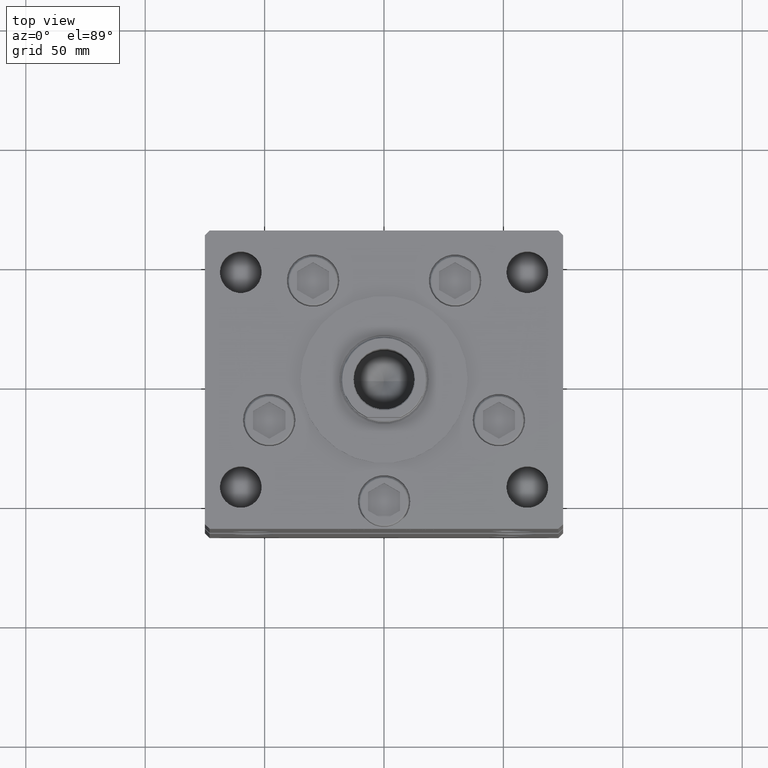
[diagram: clean part render]
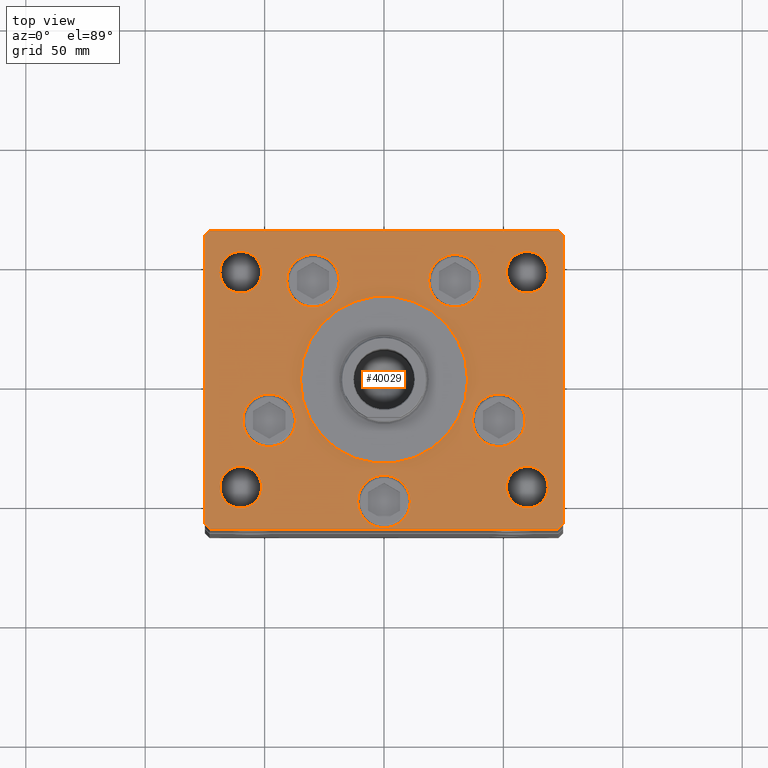
[diagram: same view with one face highlighted and labeled with its STEP entity id]
A machine part, top view. The second image highlights one B-rep face of the part: STEP entity #40029.
In plain terms, the highlighted planar face has unit normal (0, 0, 1).
Its self-contained STEP definition (entity closure, byte-faithful):
#352 = CIRCLE ( 'NONE', #20895, 8.750000000000000000 ) ;
#872 = VERTEX_POINT ( 'NONE', #4829 ) ;
#994 = CARTESIAN_POINT ( 'NONE',  ( -75.00000000000000000, -60.50000000000004263, 0.000000000000000000 ) ) ;
#1568 = CARTESIAN_POINT ( 'NONE',  ( -68.75000000000000000, -45.00000000000000000, 0.000000000000000000 ) ) ;
#1640 = CARTESIAN_POINT ( 'NONE',  ( 0.000000000000000000, -51.00000000000000000, 0.000000000000000000 ) ) ;
#1714 = EDGE_LOOP ( 'NONE', ( #19473, #42273 ) ) ;
#1761 = VECTOR ( 'NONE', #36080, 1000.000000000000000 ) ;
#2089 = DIRECTION ( 'NONE',  ( 0.000000000000000000, 0.000000000000000000, 1.000000000000000000 ) ) ;
#2182 = DIRECTION ( 'NONE',  ( 0.000000000000000000, 0.000000000000000000, 1.000000000000000000 ) ) ;
#2261 = DIRECTION ( 'NONE',  ( 1.000000000000000000, 0.000000000000000000, 0.000000000000000000 ) ) ;
#2426 = DIRECTION ( 'NONE',  ( 1.000000000000000000, 0.000000000000000000, 0.000000000000000000 ) ) ;
#2544 = FACE_BOUND ( 'NONE', #35560, .T. ) ;
#2853 = VERTEX_POINT ( 'NONE', #7726 ) ;
#3059 = DIRECTION ( 'NONE',  ( 0.000000000000000000, 0.000000000000000000, 1.000000000000000000 ) ) ;
#3080 = FACE_BOUND ( 'NONE', #4639, .T. ) ;
#3176 = CARTESIAN_POINT ( 'NONE',  ( -29.73102073172061921, 41.43749999999997868, 0.000000000000000000 ) ) ;
#3179 = ORIENTED_EDGE ( 'NONE', *, *, #12902, .T. ) ;
#3521 = ORIENTED_EDGE ( 'NONE', *, *, #49874, .F. ) ;
#3601 = EDGE_LOOP ( 'NONE', ( #38719, #27026, #52170, #47315, #41557, #13866, #18580, #3910 ) ) ;
#3842 = ORIENTED_EDGE ( 'NONE', *, *, #35438, .F. ) ;
#3885 = LINE ( 'NONE', #36596, #1761 ) ;
#3910 = ORIENTED_EDGE ( 'NONE', *, *, #25658, .T. ) ;
#4420 = VECTOR ( 'NONE', #42490, 1000.000000000000000 ) ;
#4479 = EDGE_CURVE ( 'NONE', #47500, #40188, #12800, .T. ) ;
#4639 = EDGE_LOOP ( 'NONE', ( #9243, #50319 ) ) ;
#4732 = EDGE_CURVE ( 'NONE', #26998, #34830, #15392, .T. ) ;
#4759 = VERTEX_POINT ( 'NONE', #20389 ) ;
#4778 = EDGE_CURVE ( 'NONE', #45313, #31521, #21962, .T. ) ;
#4829 = CARTESIAN_POINT ( 'NONE',  ( -51.25000000000000000, 45.00000000000000711, 0.000000000000000000 ) ) ;
#5902 = CARTESIAN_POINT ( 'NONE',  ( -18.73102073172061921, 41.43749999999997868, 0.000000000000000000 ) ) ;
#6351 = VERTEX_POINT ( 'NONE', #5902 ) ;
#6547 = VERTEX_POINT ( 'NONE', #20088 ) ;
#6617 = ORIENTED_EDGE ( 'NONE', *, *, #44158, .T. ) ;
#6655 = VERTEX_POINT ( 'NONE', #50335 ) ;
#6721 = CARTESIAN_POINT ( 'NONE',  ( -48.08326112068523628, -16.99999999999998934, 0.000000000000000000 ) ) ;
#6862 = VERTEX_POINT ( 'NONE', #38460 ) ;
#7363 = CARTESIAN_POINT ( 'NONE',  ( -60.00000000000000711, -45.00000000000000000, 0.000000000000000000 ) ) ;
#7419 = EDGE_CURVE ( 'NONE', #32765, #2853, #14106, .T. ) ;
#7726 = CARTESIAN_POINT ( 'NONE',  ( 75.00000000000001421, -60.49999999999992184, 0.000000000000000000 ) ) ;
#7973 = DIRECTION ( 'NONE',  ( 0.7071067811865474617, -0.7071067811865474617, 0.000000000000000000 ) ) ;
#8171 = FACE_OUTER_BOUND ( 'NONE', #3601, .T. ) ;
#8213 = EDGE_CURVE ( 'NONE', #6351, #11842, #51182, .T. ) ;
#8269 = VERTEX_POINT ( 'NONE', #46028 ) ;
#9243 = ORIENTED_EDGE ( 'NONE', *, *, #45530, .T. ) ;
#9250 = AXIS2_PLACEMENT_3D ( 'NONE', #19218, #52188, #20010 ) ;
#9545 = CARTESIAN_POINT ( 'NONE',  ( 68.75000000000000000, -45.00000000000000000, 0.000000000000000000 ) ) ;
#9659 = CARTESIAN_POINT ( 'NONE',  ( -72.99999999999998579, 62.49999999999997158, 0.000000000000000000 ) ) ;
#10170 = DIRECTION ( 'NONE',  ( 1.000000000000000000, 0.000000000000000000, 0.000000000000000000 ) ) ;
#10473 = CIRCLE ( 'NONE', #42114, 11.00000000000000000 ) ;
#10587 = CIRCLE ( 'NONE', #14016, 11.00000000000000355 ) ;
#10804 = DIRECTION ( 'NONE',  ( 1.000000000000000000, 0.000000000000000000, 0.000000000000000000 ) ) ;
#10814 = EDGE_CURVE ( 'NONE', #32268, #45313, #11028, .T. ) ;
#10902 = ORIENTED_EDGE ( 'NONE', *, *, #52846, .F. ) ;
#11028 = LINE ( 'NONE', #23079, #40898 ) ;
#11170 = ORIENTED_EDGE ( 'NONE', *, *, #48735, .F. ) ;
#11412 = FACE_BOUND ( 'NONE', #12478, .T. ) ;
#11565 = VERTEX_POINT ( 'NONE', #51237 ) ;
#11795 = DIRECTION ( 'NONE',  ( -1.000000000000000000, 0.000000000000000000, 0.000000000000000000 ) ) ;
#11842 = VERTEX_POINT ( 'NONE', #13340 ) ;
#11989 = LINE ( 'NONE', #28345, #38927 ) ;
#12096 = EDGE_CURVE ( 'NONE', #49188, #6655, #37478, .T. ) ;
#12191 = DIRECTION ( 'NONE',  ( -1.000000000000000000, 0.000000000000000000, 0.000000000000000000 ) ) ;
#12478 = EDGE_LOOP ( 'NONE', ( #3842, #11170 ) ) ;
#12555 = DIRECTION ( 'NONE',  ( -1.000000000000000000, 0.000000000000000000, 0.000000000000000000 ) ) ;
#12800 = CIRCLE ( 'NONE', #19667, 35.00000000000000711 ) ;
#12902 = EDGE_CURVE ( 'NONE', #872, #35373, #30633, .T. ) ;
#12995 = AXIS2_PLACEMENT_3D ( 'NONE', #1640, #50171, #34096 ) ;
#13000 = CIRCLE ( 'NONE', #27546, 8.750000000000007105 ) ;
#13340 = CARTESIAN_POINT ( 'NONE',  ( -40.73102073172061921, 41.43749999999997868, 0.000000000000000000 ) ) ;
#13638 = ORIENTED_EDGE ( 'NONE', *, *, #23017, .F. ) ;
#13664 = DIRECTION ( 'NONE',  ( 1.000000000000000000, 7.604267291953125828E-16, 0.000000000000000000 ) ) ;
#13751 = AXIS2_PLACEMENT_3D ( 'NONE', #6721, #38361, #2426 ) ;
#13866 = ORIENTED_EDGE ( 'NONE', *, *, #10814, .T. ) ;
#14016 = AXIS2_PLACEMENT_3D ( 'NONE', #39427, #14777, #26024 ) ;
#14030 = CARTESIAN_POINT ( 'NONE',  ( 29.73102073172061921, 41.43749999999997868, 0.000000000000000000 ) ) ;
#14106 = LINE ( 'NONE', #34220, #46858 ) ;
#14567 = CIRCLE ( 'NONE', #37707, 11.00000000000000355 ) ;
#14777 = DIRECTION ( 'NONE',  ( 0.000000000000000000, 0.000000000000000000, 1.000000000000000000 ) ) ;
#14894 = FACE_BOUND ( 'NONE', #37710, .T. ) ;
#15154 = FACE_BOUND ( 'NONE', #43815, .T. ) ;
#15272 = VERTEX_POINT ( 'NONE', #27724 ) ;
#15273 = ORIENTED_EDGE ( 'NONE', *, *, #4732, .F. ) ;
#15392 = CIRCLE ( 'NONE', #27392, 8.750000000000007105 ) ;
#15526 = DIRECTION ( 'NONE',  ( 1.000000000000000000, 0.000000000000000000, 0.000000000000000000 ) ) ;
#15721 = EDGE_CURVE ( 'NONE', #4759, #32765, #17160, .T. ) ;
#16091 = VERTEX_POINT ( 'NONE', #994 ) ;
#16103 = VECTOR ( 'NONE', #42556, 1000.000000000000000 ) ;
#16477 = DIRECTION ( 'NONE',  ( -0.000000000000000000, 0.000000000000000000, 1.000000000000000000 ) ) ;
#17009 = VECTOR ( 'NONE', #13664, 1000.000000000000000 ) ;
#17160 = LINE ( 'NONE', #50382, #17009 ) ;
#17312 = LINE ( 'NONE', #46523, #4420 ) ;
#17422 = AXIS2_PLACEMENT_3D ( 'NONE', #27800, #19478, #39056 ) ;
#18486 = CARTESIAN_POINT ( 'NONE',  ( -72.99999999999998579, 62.49999999999997158, 0.000000000000000000 ) ) ;
#18580 = ORIENTED_EDGE ( 'NONE', *, *, #4778, .T. ) ;
#18671 = CARTESIAN_POINT ( 'NONE',  ( -11.00000000000000000, -51.00000000000000000, 0.000000000000000000 ) ) ;
#18903 = FACE_BOUND ( 'NONE', #21536, .T. ) ;
#19098 = DIRECTION ( 'NONE',  ( 0.000000000000000000, 0.000000000000000000, 1.000000000000000000 ) ) ;
#19218 = CARTESIAN_POINT ( 'NONE',  ( 0.000000000000000000, -51.00000000000000000, 0.000000000000000000 ) ) ;
#19473 = ORIENTED_EDGE ( 'NONE', *, *, #37688, .F. ) ;
#19478 = DIRECTION ( 'NONE',  ( 0.000000000000000000, 0.000000000000000000, 1.000000000000000000 ) ) ;
#19658 = CARTESIAN_POINT ( 'NONE',  ( 35.00000000000000711, -2.652630106891490698E-15, 0.000000000000000000 ) ) ;
#19667 = AXIS2_PLACEMENT_3D ( 'NONE', #42159, #34108, #26313 ) ;
#19669 = VERTEX_POINT ( 'NONE', #45080 ) ;
#20010 = DIRECTION ( 'NONE',  ( 1.000000000000000000, 0.000000000000000000, 0.000000000000000000 ) ) ;
#20088 = CARTESIAN_POINT ( 'NONE',  ( 18.73102073172061921, 41.43749999999997868, 0.000000000000000000 ) ) ;
#20140 = AXIS2_PLACEMENT_3D ( 'NONE', #34549, #30787, #21404 ) ;
#20219 = DIRECTION ( 'NONE',  ( 1.000000000000000000, 0.000000000000000000, 0.000000000000000000 ) ) ;
#20295 = VERTEX_POINT ( 'NONE', #24072 ) ;
#20389 = CARTESIAN_POINT ( 'NONE',  ( -73.00000000000001421, -62.50000000000002842, 0.000000000000000000 ) ) ;
#20471 = CARTESIAN_POINT ( 'NONE',  ( 60.00000000000000711, -45.00000000000000000, 0.000000000000000000 ) ) ;
#20657 = CARTESIAN_POINT ( 'NONE',  ( 60.00000000000000000, 45.00000000000000000, 0.000000000000000000 ) ) ;
#20895 = AXIS2_PLACEMENT_3D ( 'NONE', #7363, #26938, #2261 ) ;
#21404 = DIRECTION ( 'NONE',  ( 1.000000000000000000, 0.000000000000000000, 0.000000000000000000 ) ) ;
#21536 = EDGE_LOOP ( 'NONE', ( #3521, #10902 ) ) ;
#21962 = LINE ( 'NONE', #9659, #34199 ) ;
#22086 = ORIENTED_EDGE ( 'NONE', *, *, #33555, .F. ) ;
#22392 = AXIS2_PLACEMENT_3D ( 'NONE', #50713, #2182, #30602 ) ;
#22398 = VERTEX_POINT ( 'NONE', #30636 ) ;
#22821 = CIRCLE ( 'NONE', #52794, 8.750000000000000000 ) ;
#22964 = CIRCLE ( 'NONE', #51208, 8.750000000000007105 ) ;
#23017 = EDGE_CURVE ( 'NONE', #34830, #26998, #13000, .T. ) ;
#23079 = CARTESIAN_POINT ( 'NONE',  ( 73.00000000000001421, 62.50000000000000000, 0.000000000000000000 ) ) ;
#23388 = DIRECTION ( 'NONE',  ( -0.000000000000000000, -0.000000000000000000, -1.000000000000000000 ) ) ;
#23464 = FACE_BOUND ( 'NONE', #43210, .T. ) ;
#23572 = EDGE_CURVE ( 'NONE', #15272, #32268, #17312, .T. ) ;
#23896 = EDGE_CURVE ( 'NONE', #11842, #6351, #10473, .T. ) ;
#23954 = VERTEX_POINT ( 'NONE', #43766 ) ;
#23995 = CIRCLE ( 'NONE', #30820, 11.00000000000000355 ) ;
#24072 = CARTESIAN_POINT ( 'NONE',  ( 51.25000000000000711, -45.00000000000000000, 0.000000000000000000 ) ) ;
#24242 = DIRECTION ( 'NONE',  ( 1.000000000000000000, 0.000000000000000000, 0.000000000000000000 ) ) ;
#24353 = DIRECTION ( 'NONE',  ( 0.000000000000000000, 0.000000000000000000, 1.000000000000000000 ) ) ;
#24533 = ORIENTED_EDGE ( 'NONE', *, *, #28040, .F. ) ;
#25658 = EDGE_CURVE ( 'NONE', #31521, #16091, #3885, .T. ) ;
#25902 = DIRECTION ( 'NONE',  ( 0.7071067811865489050, 0.7071067811865462405, 0.000000000000000000 ) ) ;
#26024 = DIRECTION ( 'NONE',  ( 1.000000000000000000, 0.000000000000000000, 0.000000000000000000 ) ) ;
#26313 = DIRECTION ( 'NONE',  ( 1.000000000000000000, 0.000000000000000000, 0.000000000000000000 ) ) ;
#26748 = CARTESIAN_POINT ( 'NONE',  ( 75.00000000000001421, -60.49999999999992184, 0.000000000000000000 ) ) ;
#26840 = CIRCLE ( 'NONE', #17422, 11.00000000000000355 ) ;
#26938 = DIRECTION ( 'NONE',  ( 0.000000000000000000, 0.000000000000000000, 1.000000000000000000 ) ) ;
#26998 = VERTEX_POINT ( 'NONE', #34946 ) ;
#27026 = ORIENTED_EDGE ( 'NONE', *, *, #15721, .T. ) ;
#27135 = CARTESIAN_POINT ( 'NONE',  ( -29.73102073172061921, 41.43749999999997868, 0.000000000000000000 ) ) ;
#27392 = AXIS2_PLACEMENT_3D ( 'NONE', #20657, #49327, #32211 ) ;
#27546 = AXIS2_PLACEMENT_3D ( 'NONE', #51136, #2089, #38822 ) ;
#27724 = CARTESIAN_POINT ( 'NONE',  ( 75.00000000000001421, 60.50000000000002842, 0.000000000000000000 ) ) ;
#27800 = CARTESIAN_POINT ( 'NONE',  ( 48.08326112068523628, -16.99999999999998934, 0.000000000000000000 ) ) ;
#27976 = AXIS2_PLACEMENT_3D ( 'NONE', #3176, #24353, #15526 ) ;
#28021 = CARTESIAN_POINT ( 'NONE',  ( 0.000000000000000000, 0.000000000000000000, 0.000000000000000000 ) ) ;
#28040 = EDGE_CURVE ( 'NONE', #6655, #49188, #43857, .T. ) ;
#28345 = CARTESIAN_POINT ( 'NONE',  ( -75.00000000000000000, -60.50000000000004263, 0.000000000000000000 ) ) ;
#29328 = CARTESIAN_POINT ( 'NONE',  ( -35.00000000000000711, -6.938893903907228378E-15, 0.000000000000000000 ) ) ;
#29486 = DIRECTION ( 'NONE',  ( 0.000000000000000000, 0.000000000000000000, 1.000000000000000000 ) ) ;
#29533 = EDGE_LOOP ( 'NONE', ( #24533, #48548 ) ) ;
#30602 = DIRECTION ( 'NONE',  ( 1.000000000000000000, 0.000000000000000000, 0.000000000000000000 ) ) ;
#30633 = CIRCLE ( 'NONE', #44361, 8.750000000000007105 ) ;
#30636 = CARTESIAN_POINT ( 'NONE',  ( -51.25000000000000711, -45.00000000000000000, 0.000000000000000000 ) ) ;
#30787 = DIRECTION ( 'NONE',  ( 0.000000000000000000, 0.000000000000000000, 1.000000000000000000 ) ) ;
#30820 = AXIS2_PLACEMENT_3D ( 'NONE', #39794, #3059, #24242 ) ;
#30972 = FACE_BOUND ( 'NONE', #1714, .T. ) ;
#31240 = FACE_BOUND ( 'NONE', #29533, .T. ) ;
#31521 = VERTEX_POINT ( 'NONE', #38407 ) ;
#32211 = DIRECTION ( 'NONE',  ( 1.000000000000000000, 0.000000000000000000, 0.000000000000000000 ) ) ;
#32268 = VERTEX_POINT ( 'NONE', #46726 ) ;
#32686 = DIRECTION ( 'NONE',  ( -0.000000000000000000, -0.000000000000000000, -1.000000000000000000 ) ) ;
#32765 = VERTEX_POINT ( 'NONE', #48520 ) ;
#33555 = EDGE_CURVE ( 'NONE', #11565, #6862, #10587, .T. ) ;
#34094 = EDGE_CURVE ( 'NONE', #6862, #11565, #26840, .T. ) ;
#34096 = DIRECTION ( 'NONE',  ( 1.000000000000000000, 0.000000000000000000, 0.000000000000000000 ) ) ;
#34108 = DIRECTION ( 'NONE',  ( 0.000000000000000000, 0.000000000000000000, 1.000000000000000000 ) ) ;
#34199 = VECTOR ( 'NONE', #45600, 1000.000000000000000 ) ;
#34220 = CARTESIAN_POINT ( 'NONE',  ( 73.00000000000001421, -62.49999999999991473, 0.000000000000000000 ) ) ;
#34383 = CIRCLE ( 'NONE', #22392, 11.00000000000000355 ) ;
#34549 = CARTESIAN_POINT ( 'NONE',  ( 0.000000000000000000, -6.938893903907228378E-15, 0.000000000000000000 ) ) ;
#34626 = DIRECTION ( 'NONE',  ( -1.000000000000000000, -1.901066822988281950E-16, 0.000000000000000000 ) ) ;
#34830 = VERTEX_POINT ( 'NONE', #40262 ) ;
#34946 = CARTESIAN_POINT ( 'NONE',  ( 51.24999999999999289, 45.00000000000000000, 0.000000000000000000 ) ) ;
#35373 = VERTEX_POINT ( 'NONE', #35782 ) ;
#35413 = DIRECTION ( 'NONE',  ( -1.000000000000000000, 0.000000000000000000, 0.000000000000000000 ) ) ;
#35438 = EDGE_CURVE ( 'NONE', #22398, #47899, #352, .T. ) ;
#35560 = EDGE_LOOP ( 'NONE', ( #37408, #46244 ) ) ;
#35782 = CARTESIAN_POINT ( 'NONE',  ( -68.75000000000000000, 45.00000000000000711, 0.000000000000000000 ) ) ;
#36080 = DIRECTION ( 'NONE',  ( 0.000000000000000000, -1.000000000000000000, 0.000000000000000000 ) ) ;
#36284 = ORIENTED_EDGE ( 'NONE', *, *, #49580, .F. ) ;
#36308 = EDGE_CURVE ( 'NONE', #16091, #4759, #11989, .T. ) ;
#36596 = CARTESIAN_POINT ( 'NONE',  ( -75.00000000000000000, 60.50000000000000000, 0.000000000000000000 ) ) ;
#36874 = CIRCLE ( 'NONE', #13751, 11.00000000000000355 ) ;
#37347 = ORIENTED_EDGE ( 'NONE', *, *, #50970, .F. ) ;
#37408 = ORIENTED_EDGE ( 'NONE', *, *, #8213, .F. ) ;
#37478 = CIRCLE ( 'NONE', #9250, 11.00000000000000000 ) ;
#37688 = EDGE_CURVE ( 'NONE', #40188, #47500, #42369, .T. ) ;
#37707 = AXIS2_PLACEMENT_3D ( 'NONE', #14030, #51542, #10804 ) ;
#37710 = EDGE_LOOP ( 'NONE', ( #22086, #42139 ) ) ;
#38361 = DIRECTION ( 'NONE',  ( 0.000000000000000000, 0.000000000000000000, 1.000000000000000000 ) ) ;
#38396 = AXIS2_PLACEMENT_3D ( 'NONE', #28021, #16477, #20219 ) ;
#38407 = CARTESIAN_POINT ( 'NONE',  ( -75.00000000000000000, 60.50000000000000000, 0.000000000000000000 ) ) ;
#38460 = CARTESIAN_POINT ( 'NONE',  ( 37.08326112068522917, -16.99999999999998934, 0.000000000000000000 ) ) ;
#38583 = CARTESIAN_POINT ( 'NONE',  ( -60.00000000000000711, -45.00000000000000000, 0.000000000000000000 ) ) ;
#38719 = ORIENTED_EDGE ( 'NONE', *, *, #36308, .T. ) ;
#38822 = DIRECTION ( 'NONE',  ( 1.000000000000000000, 0.000000000000000000, 0.000000000000000000 ) ) ;
#38927 = VECTOR ( 'NONE', #7973, 1000.000000000000114 ) ;
#39056 = DIRECTION ( 'NONE',  ( 1.000000000000000000, 0.000000000000000000, 0.000000000000000000 ) ) ;
#39281 = AXIS2_PLACEMENT_3D ( 'NONE', #20471, #47113, #12191 ) ;
#39427 = CARTESIAN_POINT ( 'NONE',  ( 48.08326112068523628, -16.99999999999998934, 0.000000000000000000 ) ) ;
#39539 = EDGE_CURVE ( 'NONE', #20295, #42658, #22821, .T. ) ;
#39741 = CARTESIAN_POINT ( 'NONE',  ( 60.00000000000000711, -45.00000000000000000, 0.000000000000000000 ) ) ;
#39794 = CARTESIAN_POINT ( 'NONE',  ( -48.08326112068523628, -16.99999999999998934, 0.000000000000000000 ) ) ;
#39818 = PLANE ( 'NONE',  #38396 ) ;
#40029 = ADVANCED_FACE ( 'NONE', ( #30972, #2544, #18903, #14894, #31240, #15154, #48392, #23464, #11412, #8171, #3080 ), #39818, .T. ) ;
#40188 = VERTEX_POINT ( 'NONE', #29328 ) ;
#40262 = CARTESIAN_POINT ( 'NONE',  ( 68.75000000000000000, 45.00000000000000000, 0.000000000000000000 ) ) ;
#40501 = DIRECTION ( 'NONE',  ( -0.000000000000000000, -0.000000000000000000, -1.000000000000000000 ) ) ;
#40898 = VECTOR ( 'NONE', #34626, 1000.000000000000000 ) ;
#41557 = ORIENTED_EDGE ( 'NONE', *, *, #23572, .T. ) ;
#42114 = AXIS2_PLACEMENT_3D ( 'NONE', #27135, #19098, #47515 ) ;
#42139 = ORIENTED_EDGE ( 'NONE', *, *, #34094, .F. ) ;
#42159 = CARTESIAN_POINT ( 'NONE',  ( 0.000000000000000000, -6.938893903907228378E-15, 0.000000000000000000 ) ) ;
#42273 = ORIENTED_EDGE ( 'NONE', *, *, #4479, .F. ) ;
#42369 = CIRCLE ( 'NONE', #20140, 35.00000000000000711 ) ;
#42390 = EDGE_CURVE ( 'NONE', #2853, #15272, #46844, .T. ) ;
#42490 = DIRECTION ( 'NONE',  ( -0.7071067811865524577, 0.7071067811865426878, 0.000000000000000000 ) ) ;
#42556 = DIRECTION ( 'NONE',  ( 0.000000000000000000, 1.000000000000000000, 0.000000000000000000 ) ) ;
#42658 = VERTEX_POINT ( 'NONE', #9545 ) ;
#43210 = EDGE_LOOP ( 'NONE', ( #13638, #15273 ) ) ;
#43766 = CARTESIAN_POINT ( 'NONE',  ( 40.73102073172061921, 41.43749999999997868, 0.000000000000000000 ) ) ;
#43815 = EDGE_LOOP ( 'NONE', ( #36284, #37347 ) ) ;
#43857 = CIRCLE ( 'NONE', #12995, 11.00000000000000000 ) ;
#44158 = EDGE_CURVE ( 'NONE', #35373, #872, #22964, .T. ) ;
#44361 = AXIS2_PLACEMENT_3D ( 'NONE', #48509, #32686, #11795 ) ;
#44434 = CIRCLE ( 'NONE', #39281, 8.750000000000000000 ) ;
#44550 = CIRCLE ( 'NONE', #45376, 8.750000000000000000 ) ;
#45080 = CARTESIAN_POINT ( 'NONE',  ( -37.08326112068522917, -16.99999999999998934, 0.000000000000000000 ) ) ;
#45313 = VERTEX_POINT ( 'NONE', #18486 ) ;
#45376 = AXIS2_PLACEMENT_3D ( 'NONE', #38583, #29486, #10170 ) ;
#45530 = EDGE_CURVE ( 'NONE', #42658, #20295, #44434, .T. ) ;
#45600 = DIRECTION ( 'NONE',  ( -0.7071067811865549002, -0.7071067811865401342, 0.000000000000000000 ) ) ;
#46028 = CARTESIAN_POINT ( 'NONE',  ( -59.08326112068523628, -16.99999999999998934, 0.000000000000000000 ) ) ;
#46244 = ORIENTED_EDGE ( 'NONE', *, *, #23896, .F. ) ;
#46523 = CARTESIAN_POINT ( 'NONE',  ( 75.00000000000001421, 60.50000000000002842, 0.000000000000000000 ) ) ;
#46726 = CARTESIAN_POINT ( 'NONE',  ( 73.00000000000001421, 62.50000000000000000, 0.000000000000000000 ) ) ;
#46844 = LINE ( 'NONE', #26748, #16103 ) ;
#46858 = VECTOR ( 'NONE', #25902, 999.9999999999998863 ) ;
#47113 = DIRECTION ( 'NONE',  ( -0.000000000000000000, -0.000000000000000000, -1.000000000000000000 ) ) ;
#47315 = ORIENTED_EDGE ( 'NONE', *, *, #42390, .T. ) ;
#47500 = VERTEX_POINT ( 'NONE', #19658 ) ;
#47515 = DIRECTION ( 'NONE',  ( 1.000000000000000000, 0.000000000000000000, 0.000000000000000000 ) ) ;
#47899 = VERTEX_POINT ( 'NONE', #1568 ) ;
#48275 = CARTESIAN_POINT ( 'NONE',  ( -60.00000000000000000, 45.00000000000000711, 0.000000000000000000 ) ) ;
#48392 = FACE_BOUND ( 'NONE', #50880, .T. ) ;
#48509 = CARTESIAN_POINT ( 'NONE',  ( -60.00000000000000000, 45.00000000000000711, 0.000000000000000000 ) ) ;
#48520 = CARTESIAN_POINT ( 'NONE',  ( 73.00000000000001421, -62.49999999999991473, 0.000000000000000000 ) ) ;
#48548 = ORIENTED_EDGE ( 'NONE', *, *, #12096, .F. ) ;
#48735 = EDGE_CURVE ( 'NONE', #47899, #22398, #44550, .T. ) ;
#49188 = VERTEX_POINT ( 'NONE', #18671 ) ;
#49327 = DIRECTION ( 'NONE',  ( 0.000000000000000000, 0.000000000000000000, 1.000000000000000000 ) ) ;
#49580 = EDGE_CURVE ( 'NONE', #19669, #8269, #23995, .T. ) ;
#49874 = EDGE_CURVE ( 'NONE', #23954, #6547, #14567, .T. ) ;
#50171 = DIRECTION ( 'NONE',  ( 0.000000000000000000, 0.000000000000000000, 1.000000000000000000 ) ) ;
#50319 = ORIENTED_EDGE ( 'NONE', *, *, #39539, .T. ) ;
#50335 = CARTESIAN_POINT ( 'NONE',  ( 11.00000000000000000, -51.00000000000000000, 0.000000000000000000 ) ) ;
#50382 = CARTESIAN_POINT ( 'NONE',  ( -73.00000000000001421, -62.50000000000002842, 0.000000000000000000 ) ) ;
#50713 = CARTESIAN_POINT ( 'NONE',  ( 29.73102073172061921, 41.43749999999997868, 0.000000000000000000 ) ) ;
#50880 = EDGE_LOOP ( 'NONE', ( #3179, #6617 ) ) ;
#50970 = EDGE_CURVE ( 'NONE', #8269, #19669, #36874, .T. ) ;
#51136 = CARTESIAN_POINT ( 'NONE',  ( 60.00000000000000000, 45.00000000000000000, 0.000000000000000000 ) ) ;
#51182 = CIRCLE ( 'NONE', #27976, 11.00000000000000000 ) ;
#51208 = AXIS2_PLACEMENT_3D ( 'NONE', #48275, #40501, #35413 ) ;
#51237 = CARTESIAN_POINT ( 'NONE',  ( 59.08326112068523628, -16.99999999999998934, 0.000000000000000000 ) ) ;
#51542 = DIRECTION ( 'NONE',  ( 0.000000000000000000, 0.000000000000000000, 1.000000000000000000 ) ) ;
#52170 = ORIENTED_EDGE ( 'NONE', *, *, #7419, .T. ) ;
#52188 = DIRECTION ( 'NONE',  ( 0.000000000000000000, 0.000000000000000000, 1.000000000000000000 ) ) ;
#52794 = AXIS2_PLACEMENT_3D ( 'NONE', #39741, #23388, #12555 ) ;
#52846 = EDGE_CURVE ( 'NONE', #6547, #23954, #34383, .T. ) ;